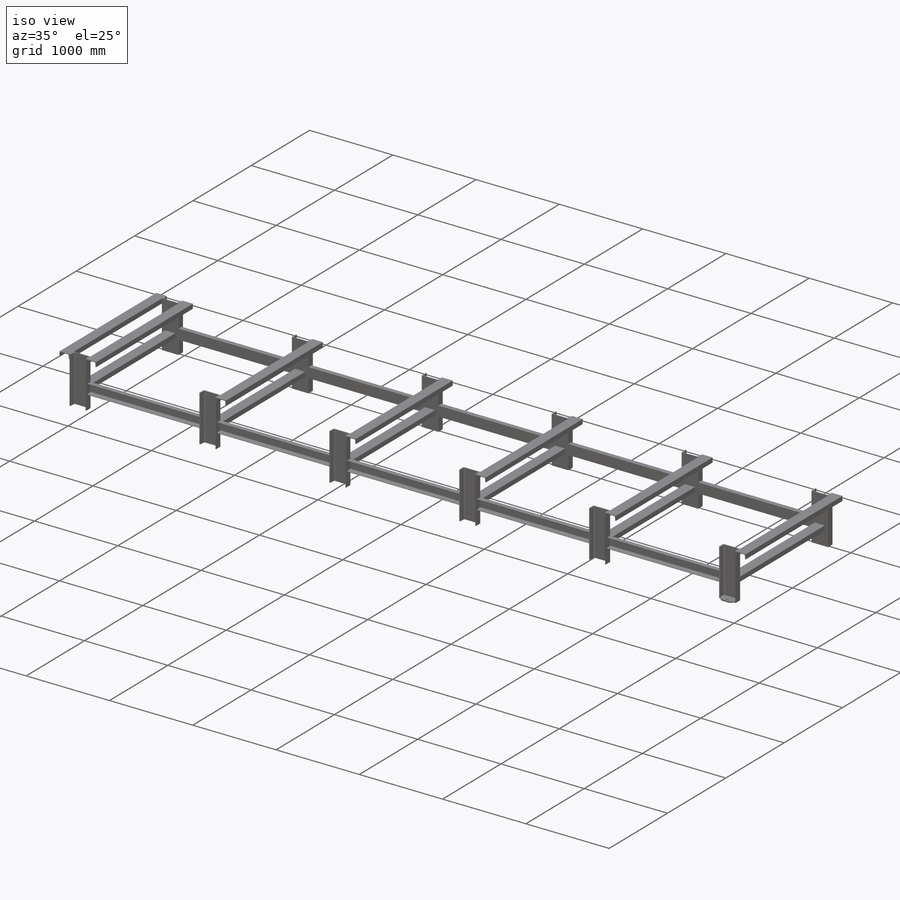
[diagram: iso view]
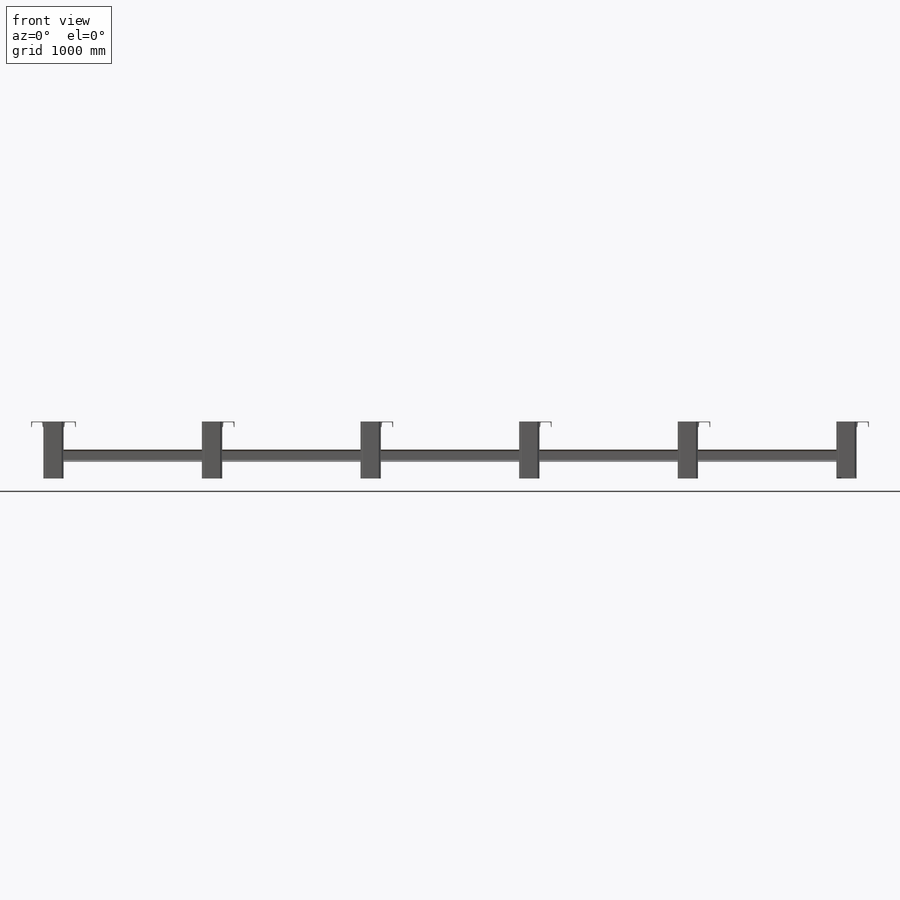
[diagram: front view]
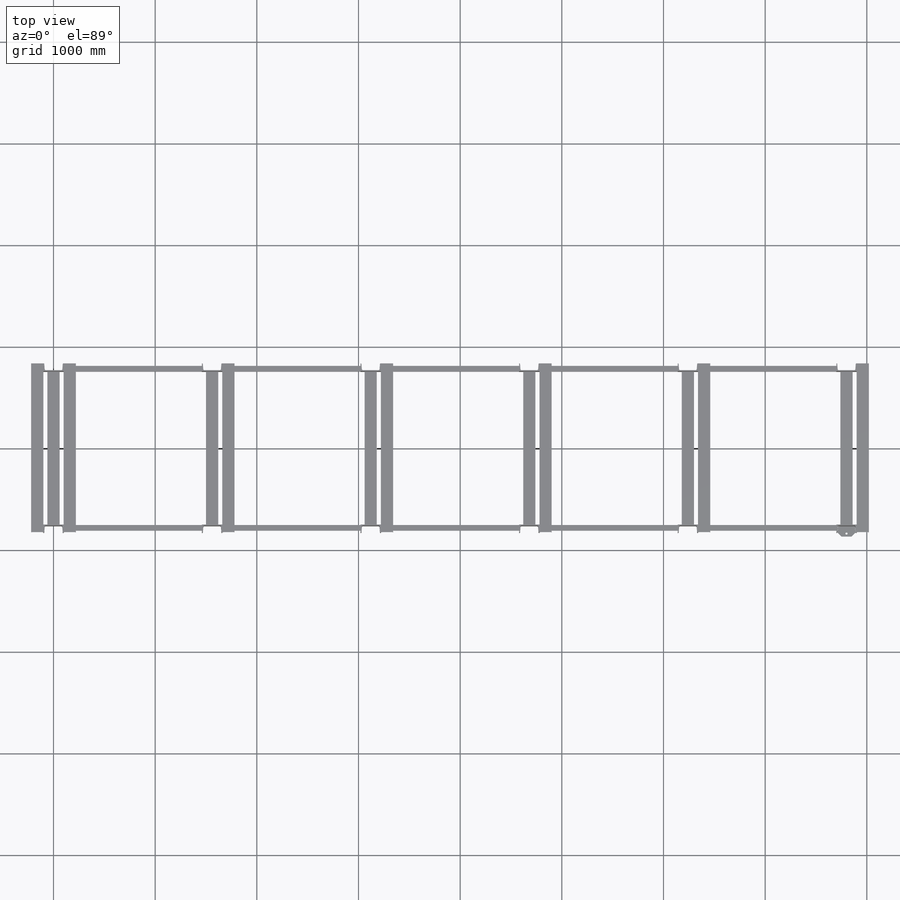
[diagram: top view]
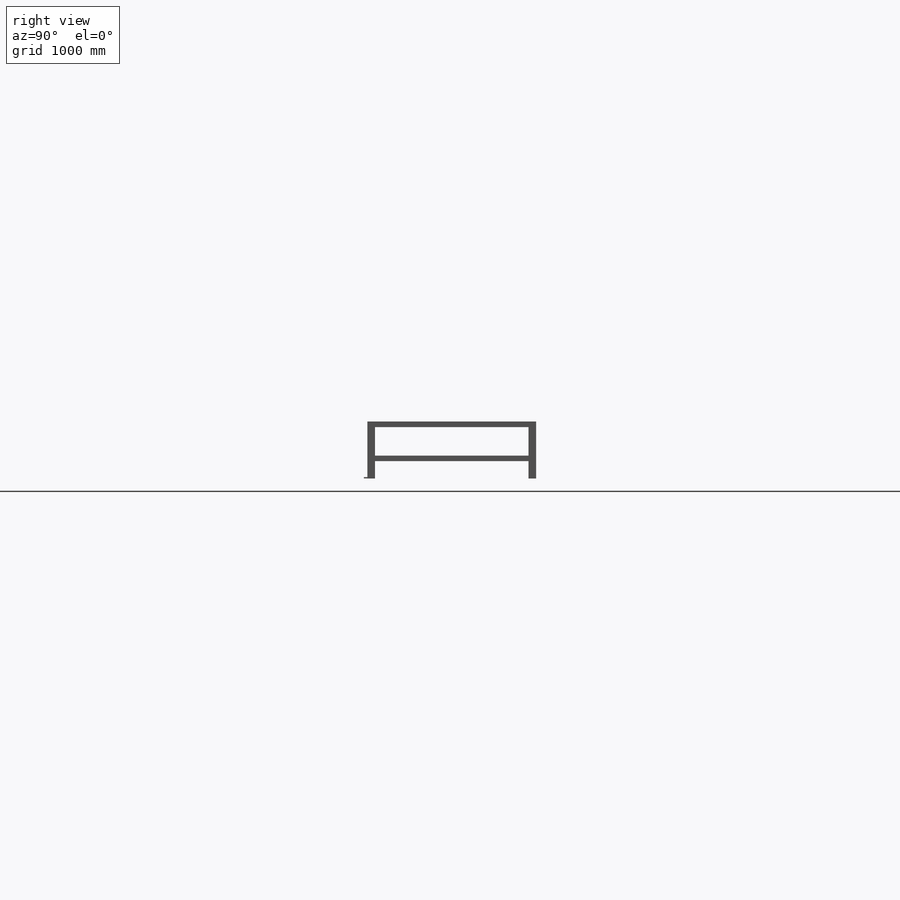
[diagram: right view]
SOLIDWORKS PART (.sldprt)
format: sldprt  version: not decoded by parser v0  size: 787,968 bytes
history: native  units: mm
features: sketch x8, plane x7, material x1, extrude x1 + 4 further entries (+9 scaffold rows collapsed)
feature tree (30):
  scaffold x9  (default folders/planes/origin — collapsed)
  material  "1.0037 (S235JR)"
  "Querstrebe innen"
  "Querstrebe aussen"
  "Längsstrebe"
  "Zuschnittslistenelement2"
  plane  "Ebene vorne"
  plane  "Ebene oben"
  plane  "Ebene rechts"
  sketch  "Skizze1"  dims[c1.D4=~90.131711mm c1.D1=1510.0mm c1.D3=1560.0mm c2.D4=1360.0mm c2.D5=100.0mm c2.D6=100.0mm c2.D7=100.0mm c2.D8=100.0mm c2.D9=100.0mm c2.D2=6.0]
  sketch  "3D-Skizze1"  dims[c1.D1=~885.283004mm c2.D1=~1800.794068mm c3.D1=560.0mm c3.D2=335.0mm c3.D3=~1034.629331mm c4.D3=~855.211642mm c5.D3=~795.115918mm c6.D3=~682.305954mm c7.D3=~666.551031mm c8.D3=~1034.629331mm c8.D4=~1034.629331mm c9.D3=1510.0mm]
  plane  "Ebene1"  Offset=335mm
  sketch  "Skizze2"  dims[D1=1660.0mm D2=100.0mm D3=320.0mm D5=1560.0mm D6=1660.0mm D4=6.0]
  plane  "Ebene2"
  sketch  "Sketch12"  dims[c1.D4=6.35mm c1.D5=6.35mm c2.D4=6.35mm c2.D5=6.35mm c2.RI=9.0mm c2.D2=3.175mm c3.D4=9.525mm c3.RA=4.5mm c3.D1=~380.99967mm c3.D2=6.35mm c3.D3=~94.386318mm c3.D6=6.35mm c4.D2=45.0deg c4.D6=~9.775613mm c5.D2=12.84deg c5.D6=~18.186384mm c5.D7=~8.667528deg c5.D8=~7.604041mm c6.D2=~5.342953mm c6.D8=~5.388932mm c7.D2=6.35mm c7.D7=6.35mm c7.D8=5.0deg c8.D2=~9.462999deg c8.D7=~4.995508mm c8.D1=76.2mm c9.D2=152.4mm c9.D3=12.7mm c9.D6=~9.462997deg c9.Depth=120.0mm c10.D2=4.574deg c10.BF=55.0mm c10.TW=7.0mm c10.TF=9.0mm c10.D8=~109.715019mm c10.d1=~94.383769mm c10.D3=~29.008115mm c10.D4=27.5mm]
  sketch  "U 200"
  plane  "Ebene3"
  sketch  "Sketch1"  dims[c1.D4=6.35mm c1.D5=6.35mm c2.D4=6.35mm c2.D5=6.35mm c2.RI=11.5mm c2.D2=3.175mm c3.D4=9.525mm c3.RA=6.0mm c3.D1=~380.99967mm c3.D2=6.35mm c3.D3=~94.386318mm c3.D6=6.35mm c4.D2=45.0deg c4.D6=~9.775613mm c5.D2=12.84deg c5.D6=~18.186384mm c5.D7=~8.667528deg c5.D8=~7.604041mm c6.D2=~5.342953mm c6.D8=~5.388932mm c7.D2=6.35mm c7.D7=6.35mm c7.D8=5.0deg c8.D2=~9.462999deg c8.D7=~4.995508mm c8.D1=76.2mm c9.D2=152.4mm c9.D3=12.7mm c9.D6=~9.462997deg c9.Depth=200.0mm c10.D2=4.574deg c10.BF=75.0mm c10.TW=8.5mm c10.TF=11.5mm c10.D8=~109.715019mm c10.d1=~94.383769mm c10.D3=~29.008115mm c10.D4=37.5mm]
  sketch  "Skizze3"  dims[c1.D1=~104.274925mm c1.D2=~106.860511mm c2.D2=4.574deg c3.D2=100.0mm c3.D3=~74.896641mm c4.D3=135.0deg c4.D4=~93.255222mm c5.D4=135.0deg c5.D1=100.0mm c6.D4=~56.65578mm c6.D1=~39.941774mm c7.D1=135.0deg c8.D1=1.0mm]
  plane  "Ebene4"
  sketch  "Skizze5"  dims[c1.D5=20.0mm c1.D6=20.0mm c1.D2=100.0mm c1.D3=~55.034929mm c2.D3=135.0deg c2.D4=~81.491837mm c3.D4=135.0deg c3.D6=30.0mm c3.D1=1.0mm]
  extrude  "Blech 15, 100 x 180"  Depth=15mm
decode coverage: 8 of 9 modeling features carry decoded parameters; 4 rows unclassified (native names shown)
note: ~ marks probable driven/reference dimensions
note: suppression state not decoded; provenance and decode notes live in map.json
